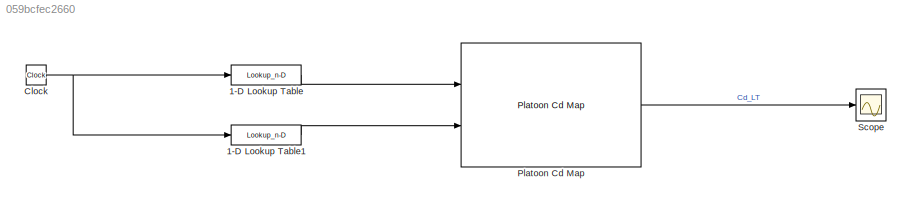
MODEL slx_059bcfec2660
KIND model
CONFIG AbsTol = auto
CONFIG EnableMultiTasking = off
CONFIG FixedStep = auto
CONFIG MaxStep = auto
CONFIG MinStep = auto
CONFIG RelTol = 1e-3
CONFIG SampleTimeConstraint = Unconstrained
CONFIG Solver = VariableStepAuto
CONFIG SolverName = VariableStepAuto
CONFIG StartTime = 0.0
CONFIG StopTime = time_dist(end)
BLOCK [Lookup_n-D] 1-D Lookup Table
  BreakpointsForDimension1 = time_dist
  InternalRulePriority = Speed
  NumberOfTableDimensions = 1
  Ports = [1, 1]
  RndMeth = Simplest
  Table = BC_dist
BLOCK [Lookup_n-D] 1-D Lookup Table1
  BreakpointsForDimension1 = time_dist
  InternalRulePriority = Speed
  NumberOfTableDimensions = 1
  Ports = [1, 1]
  RndMeth = Simplest
  Table = CS_dist
BLOCK [Clock] Clock
  Decimation = 100
BLOCK [Reference] Platoon Cd Map  REF=platooning_custom_blocks/Platoon Cd Map  (lib defined in slx_64fc7da9e19a)
  Ports = [2, 1]
  SourceBlock = platooning_custom_blocks/Platoon Cd Map
BLOCK [Scope] Scope
  Floating = off
  NumInputPorts = 1
  Ports = [1]
  ScopeSpecificationString = Simulink.scopes.TimeScopeBlockCfg('CurrentConfiguration', extmgr.ConfigurationSet(extmgr.Configuration('Core','General UI',true),extmgr.Configuration('Core','Source UI',true),extmgr.Configuration('Sources','WiredSimulink',true),extmgr.Configuration('Visuals','Time Domain',true,'SerializedDisplays',{struct('MinYLimReal','0.51788','MaxYLimReal','0.52024','YLabelReal','','MinYLimMag','0.51788','MaxYL...<+1323ch>
LINE 1-D Lookup Table1:1 -> Platoon Cd Map:2
LINE 1-D Lookup Table:1 -> Platoon Cd Map:1
NET Clock:1 -> 1-D Lookup Table1:1, 1-D Lookup Table:1
LINE Platoon Cd Map:1 -> Scope:1
note: NET lines group one-source signal fan-out (src -> all destinations, sorted); 1:1 wires keep LINE
